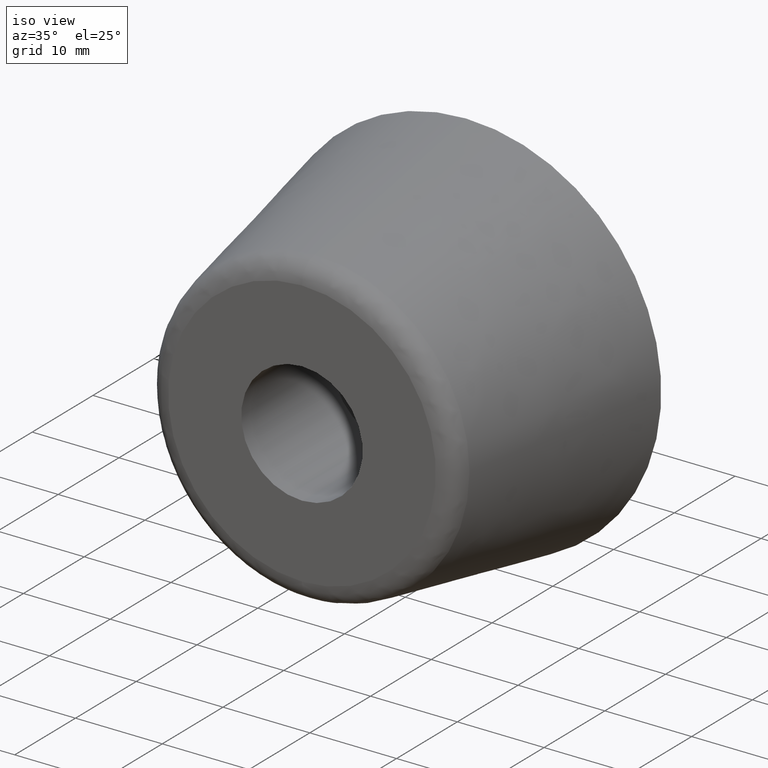
[diagram: clean part render]
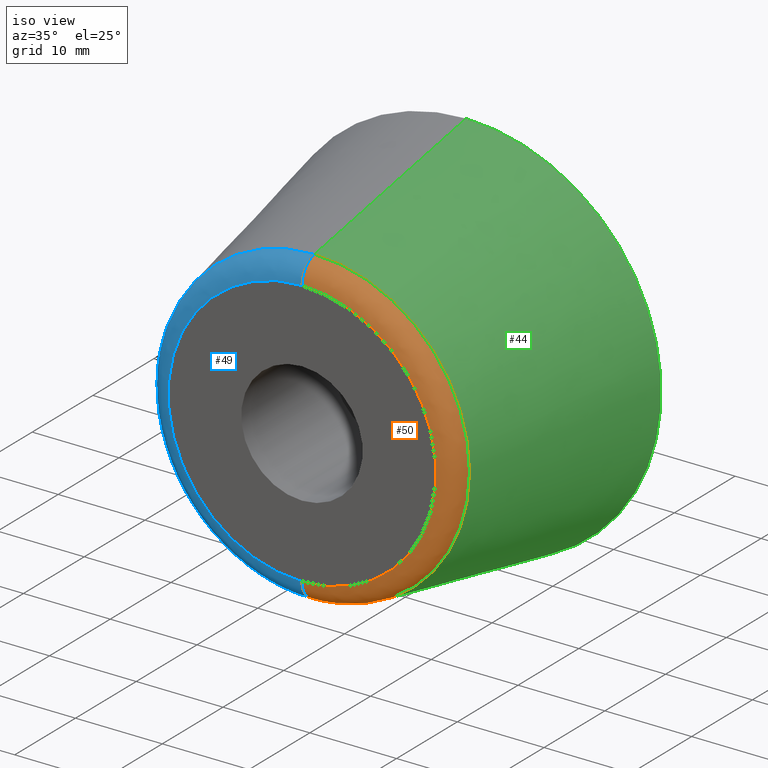
[diagram: same view with three faces highlighted in distinct colors, each labeled with its STEP entity id]
A machine part, iso view with three faces highlighted in distinct colors.
Their STEP definitions:

[orange] entity #50 — the highlighted face is a freeform B-spline surface patch.
#50=ADVANCED_FACE('',(#155),#154,.T.);
#154=( BOUNDED_SURFACE() B_SPLINE_SURFACE( 2,2,((#250,#251,#252,#253,#254),(#255,#256,#257,#258,#259),(#260,#261,#262,#263,#264),(#265,#266,#267,#268,#269),(#270,#271,#272,#273,#274)), .UNSPECIFIED.,.F.,.F.,.F.) B_SPLINE_SURFACE_WITH_KNOTS((3,2,3),(3,2,3),(0.00000000000E+00,5.00000000000E-01,1.00000000000E+00),(0.00000000000E+00,5.00000000000E-01,1.00000000000E+00), .UNSPECIFIED. ) GEOMETRIC_REPRESENTATION_ITEM() RATIONAL_B_SPLINE_SURFACE(((1.00000000000E+00,7.68794270329E-01,1.00000000000E+00,7.68794270329E-01,1.00000000000E+00),(7.07106781187E-01,5.43619641887E-01,7.07106781187E-01,5.43619641887E-01,7.07106781187E-01),(1.00000000000E+00,7.68794270329E-01,1.00000000000E+00,7.68794270329E-01,1.00000000000E+00),(7.07106781187E-01,5.43619641887E-01,7.07106781187E-01,5.43619641887E-01,7.07106781187E-01),(1.00000000000E+00,7.68794270329E-01,1.00000000000E+00,7.68794270329E-01,1.00000000000E+00))) REPRESENTATION_ITEM('') SURFACE() );
#155=FACE_OUTER_BOUND('',#275,.T.);
#250=CARTESIAN_POINT('',(-7.23108310076E-20,-2.49552231505E+01,-1.78786623795E+01));
#251=CARTESIAN_POINT('',(-7.07793187079E-20,-2.70000000000E+01,-1.75000000000E+01));
#252=CARTESIAN_POINT('',(-6.23685409489E-20,-2.70000000000E+01,-1.54204573671E+01));
#253=CARTESIAN_POINT('',(-5.39577631900E-20,-2.70000000000E+01,-1.33409147342E+01));
#254=CARTESIAN_POINT('',(-5.24262508903E-20,-2.49552231505E+01,-1.29622523546E+01));
#255=CARTESIAN_POINT('',(1.78786623795E+01,-2.49552231505E+01,-1.78786623795E+01));
#256=CARTESIAN_POINT('',(1.75000000000E+01,-2.70000000000E+01,-1.75000000000E+01));
#257=CARTESIAN_POINT('',(1.54204573671E+01,-2.70000000000E+01,-1.54204573671E+01));
#258=CARTESIAN_POINT('',(1.33409147342E+01,-2.70000000000E+01,-1.33409147342E+01));
#259=CARTESIAN_POINT('',(1.29622523546E+01,-2.49552231505E+01,-1.29622523546E+01));
#260=CARTESIAN_POINT('',(1.78786623795E+01,-2.49552231505E+01,-1.09482464364E-15));
#261=CARTESIAN_POINT('',(1.75000000000E+01,-2.70000000000E+01,-1.07163672857E-15));
#262=CARTESIAN_POINT('',(1.54204573671E+01,-2.70000000000E+01,-9.44293056340E-16));
#263=CARTESIAN_POINT('',(1.33409147342E+01,-2.70000000000E+01,-8.16949384108E-16));
#264=CARTESIAN_POINT('',(1.29622523546E+01,-2.49552231505E+01,-7.93761469042E-16));
#265=CARTESIAN_POINT('',(1.78786623795E+01,-2.49552231505E+01,1.78786623795E+01));
#266=CARTESIAN_POINT('',(1.75000000000E+01,-2.70000000000E+01,1.75000000000E+01));
#267=CARTESIAN_POINT('',(1.54204573671E+01,-2.70000000000E+01,1.54204573671E+01));
#268=CARTESIAN_POINT('',(1.33409147342E+01,-2.70000000000E+01,1.33409147342E+01));
#269=CARTESIAN_POINT('',(1.29622523546E+01,-2.49552231505E+01,1.29622523546E+01));
#270=CARTESIAN_POINT('',(2.18957697645E-15,-2.49552231505E+01,1.78786623795E+01));
#271=CARTESIAN_POINT('',(2.14320267783E-15,-2.70000000000E+01,1.75000000000E+01));
#272=CARTESIAN_POINT('',(1.88852374414E-15,-2.70000000000E+01,1.54204573671E+01));
#273=CARTESIAN_POINT('',(1.63384481045E-15,-2.70000000000E+01,1.33409147342E+01));
#274=CARTESIAN_POINT('',(1.58747051183E-15,-2.49552231505E+01,1.29622523546E+01));
#275=EDGE_LOOP('',(#316,#317,#318,#319));
#316=ORIENTED_EDGE('',*,*,#335,.T.);
#317=ORIENTED_EDGE('',*,*,#340,.T.);
#318=ORIENTED_EDGE('',*,*,#328,.F.);
#319=ORIENTED_EDGE('',*,*,#341,.F.);
#328=EDGE_CURVE('',#398,#399,#400,.T.);
#335=EDGE_CURVE('',#426,#433,#446,.T.);
#340=EDGE_CURVE('',#433,#399,#476,.T.);
#341=EDGE_CURVE('',#426,#398,#482,.T.);
#398=VERTEX_POINT('',#528);
#399=VERTEX_POINT('',#529);
#400=CIRCLE('',#533,1.54204573671E+01);
#426=VERTEX_POINT('',#548);
#433=VERTEX_POINT('',#551);
#446=CIRCLE('',#561,1.78786623795E+01);
#476=(BOUNDED_CURVE() B_SPLINE_CURVE(2,(#570,#571,#572),.UNSPECIFIED.,.F.,.F.) B_SPLINE_CURVE_WITH_KNOTS((3,3),(0.00000000000E+00,5.00000000000E-01),.UNSPECIFIED.) CURVE() GEOMETRIC_REPRESENTATION_ITEM() RATIONAL_B_SPLINE_CURVE((1.00000000000E+00,7.68794270329E-01,1.00000000000E+00)) REPRESENTATION_ITEM('') );
#482=(BOUNDED_CURVE() B_SPLINE_CURVE(3,(#573,#574,#575,#576,#577),.UNSPECIFIED.,.F.,.F.) B_SPLINE_CURVE_WITH_KNOTS((4,1,4),(0.00000000000E+00,2.50000001162E-01,5.00000002077E-01),.UNSPECIFIED.) CURVE() GEOMETRIC_REPRESENTATION_ITEM() RATIONAL_B_SPLINE_CURVE((1.00000000000E+00,1.00000000000E+00,1.00000000000E+00,1.00000000000E+00,1.00000000000E+00)) REPRESENTATION_ITEM('') );
#528=CARTESIAN_POINT('',(0.00000000000E+00,-2.70000000000E+01,-1.54204573671E+01));
#529=CARTESIAN_POINT('',(1.18423789293E-15,-2.70000000000E+01,1.54204573671E+01));
#530=CARTESIAN_POINT('',(0.00000000000E+00,-2.70000000000E+01,0.00000000000E+00));
#531=DIRECTION('',(0.00000000000E+00,-1.00000000000E+00,-0.00000000000E+00));
#532=DIRECTION('',(-1.22460635382E-16,0.00000000000E+00,-1.00000000000E+00));
#533=AXIS2_PLACEMENT_3D('',#530,#531,#532);
#548=CARTESIAN_POINT('',(0.00000000000E+00,-2.49552231505E+01,-1.78786623795E+01));
#551=CARTESIAN_POINT('',(1.18423789293E-15,-2.49552231505E+01,1.78786623795E+01));
#558=CARTESIAN_POINT('',(0.00000000000E+00,-2.49552231505E+01,0.00000000000E+00));
#559=DIRECTION('',(0.00000000000E+00,-1.00000000000E+00,-0.00000000000E+00));
#560=DIRECTION('',(-1.22460635382E-16,0.00000000000E+00,-1.00000000000E+00));
#561=AXIS2_PLACEMENT_3D('',#558,#559,#560);
#570=CARTESIAN_POINT('',(-2.18943235478E-15,-2.49552231505E+01,1.78786623795E+01));
#571=CARTESIAN_POINT('',(-2.14306111919E-15,-2.70000000000E+01,1.75000000000E+01));
#572=CARTESIAN_POINT('',(-1.88839900706E-15,-2.70000000000E+01,1.54204573671E+01));
#573=CARTESIAN_POINT('',(3.55271367880E-15,-2.49552231505E+01,-1.78786623795E+01));
#574=CARTESIAN_POINT('',(3.20744366482E-15,-2.55202417002E+01,-1.77774424852E+01));
#575=CARTESIAN_POINT('',(2.81820962910E-15,-2.65821724544E+01,-1.71524439124E+01));
#576=CARTESIAN_POINT('',(3.20744368193E-15,-2.70033561121E+01,-1.59944609813E+01));
#577=CARTESIAN_POINT('',(3.55271366595E-15,-2.70000000000E+01,-1.54204573538E+01));

[blue] entity #49 — the highlighted face is a freeform B-spline surface patch.
#49=ADVANCED_FACE('',(#145),#144,.T.);
#144=( BOUNDED_SURFACE() B_SPLINE_SURFACE( 2,2,((#224,#225,#226,#227,#228),(#229,#230,#231,#232,#233),(#234,#235,#236,#237,#238),(#239,#240,#241,#242,#243),(#244,#245,#246,#247,#248)), .UNSPECIFIED.,.F.,.F.,.F.) B_SPLINE_SURFACE_WITH_KNOTS((3,2,3),(3,2,3),(0.00000000000E+00,5.00000000000E-01,1.00000000000E+00),(0.00000000000E+00,5.00000000000E-01,1.00000000000E+00), .UNSPECIFIED. ) GEOMETRIC_REPRESENTATION_ITEM() RATIONAL_B_SPLINE_SURFACE(((1.00000000000E+00,7.68794270329E-01,1.00000000000E+00,7.68794270329E-01,1.00000000000E+00),(7.07106781187E-01,5.43619641887E-01,7.07106781187E-01,5.43619641887E-01,7.07106781187E-01),(1.00000000000E+00,7.68794270329E-01,1.00000000000E+00,7.68794270329E-01,1.00000000000E+00),(7.07106781187E-01,5.43619641887E-01,7.07106781187E-01,5.43619641887E-01,7.07106781187E-01),(1.00000000000E+00,7.68794270329E-01,1.00000000000E+00,7.68794270329E-01,1.00000000000E+00))) REPRESENTATION_ITEM('') SURFACE() );
#145=FACE_OUTER_BOUND('',#249,.T.);
#224=CARTESIAN_POINT('',(-2.18943235478E-15,-2.49552231505E+01,1.78786623795E+01));
#225=CARTESIAN_POINT('',(-2.14306111919E-15,-2.70000000000E+01,1.75000000000E+01));
#226=CARTESIAN_POINT('',(-1.88839900706E-15,-2.70000000000E+01,1.54204573671E+01));
#227=CARTESIAN_POINT('',(-1.63373689493E-15,-2.70000000000E+01,1.33409147342E+01));
#228=CARTESIAN_POINT('',(-1.58736565933E-15,-2.49552231505E+01,1.29622523546E+01));
#229=CARTESIAN_POINT('',(-1.78786623795E+01,-2.49552231505E+01,1.78786623795E+01));
#230=CARTESIAN_POINT('',(-1.75000000000E+01,-2.70000000000E+01,1.75000000000E+01));
#231=CARTESIAN_POINT('',(-1.54204573671E+01,-2.70000000000E+01,1.54204573671E+01));
#232=CARTESIAN_POINT('',(-1.33409147342E+01,-2.70000000000E+01,1.33409147342E+01));
#233=CARTESIAN_POINT('',(-1.29622523546E+01,-2.49552231505E+01,1.29622523546E+01));
#234=CARTESIAN_POINT('',(-1.78786623795E+01,-2.49552231505E+01,-1.09468002198E-15));
#235=CARTESIAN_POINT('',(-1.75000000000E+01,-2.70000000000E+01,-1.07149516994E-15));
#236=CARTESIAN_POINT('',(-1.54204573671E+01,-2.70000000000E+01,-9.44168319258E-16));
#237=CARTESIAN_POINT('',(-1.33409147342E+01,-2.70000000000E+01,-8.16841468582E-16));
#238=CARTESIAN_POINT('',(-1.29622523546E+01,-2.49552231505E+01,-7.93656616541E-16));
#239=CARTESIAN_POINT('',(-1.78786623795E+01,-2.49552231505E+01,-1.78786623795E+01));
#240=CARTESIAN_POINT('',(-1.75000000000E+01,-2.70000000000E+01,-1.75000000000E+01));
#241=CARTESIAN_POINT('',(-1.54204573671E+01,-2.70000000000E+01,-1.54204573671E+01));
#242=CARTESIAN_POINT('',(-1.33409147342E+01,-2.70000000000E+01,-1.33409147342E+01));
#243=CARTESIAN_POINT('',(-1.29622523546E+01,-2.49552231505E+01,-1.29622523546E+01));
#244=CARTESIAN_POINT('',(-7.23108310074E-20,-2.49552231505E+01,-1.78786623795E+01));
#245=CARTESIAN_POINT('',(-7.07793187075E-20,-2.70000000000E+01,-1.75000000000E+01));
#246=CARTESIAN_POINT('',(-6.23685409487E-20,-2.70000000000E+01,-1.54204573671E+01));
#247=CARTESIAN_POINT('',(-5.39577631895E-20,-2.70000000000E+01,-1.33409147342E+01));
#248=CARTESIAN_POINT('',(-5.24262508899E-20,-2.49552231505E+01,-1.29622523546E+01));
#249=EDGE_LOOP('',(#312,#313,#314,#315));
#312=ORIENTED_EDGE('',*,*,#329,.F.);
#313=ORIENTED_EDGE('',*,*,#340,.F.);
#314=ORIENTED_EDGE('',*,*,#333,.T.);
#315=ORIENTED_EDGE('',*,*,#341,.T.);
#329=EDGE_CURVE('',#399,#398,#406,.T.);
#333=EDGE_CURVE('',#433,#426,#434,.T.);
#340=EDGE_CURVE('',#433,#399,#476,.T.);
#341=EDGE_CURVE('',#426,#398,#482,.T.);
#398=VERTEX_POINT('',#528);
#399=VERTEX_POINT('',#529);
#406=CIRCLE('',#537,1.54204573671E+01);
#426=VERTEX_POINT('',#548);
#433=VERTEX_POINT('',#551);
#434=CIRCLE('',#555,1.78786623795E+01);
#476=(BOUNDED_CURVE() B_SPLINE_CURVE(2,(#570,#571,#572),.UNSPECIFIED.,.F.,.F.) B_SPLINE_CURVE_WITH_KNOTS((3,3),(0.00000000000E+00,5.00000000000E-01),.UNSPECIFIED.) CURVE() GEOMETRIC_REPRESENTATION_ITEM() RATIONAL_B_SPLINE_CURVE((1.00000000000E+00,7.68794270329E-01,1.00000000000E+00)) REPRESENTATION_ITEM('') );
#482=(BOUNDED_CURVE() B_SPLINE_CURVE(3,(#573,#574,#575,#576,#577),.UNSPECIFIED.,.F.,.F.) B_SPLINE_CURVE_WITH_KNOTS((4,1,4),(0.00000000000E+00,2.50000001162E-01,5.00000002077E-01),.UNSPECIFIED.) CURVE() GEOMETRIC_REPRESENTATION_ITEM() RATIONAL_B_SPLINE_CURVE((1.00000000000E+00,1.00000000000E+00,1.00000000000E+00,1.00000000000E+00,1.00000000000E+00)) REPRESENTATION_ITEM('') );
#528=CARTESIAN_POINT('',(0.00000000000E+00,-2.70000000000E+01,-1.54204573671E+01));
#529=CARTESIAN_POINT('',(1.18423789293E-15,-2.70000000000E+01,1.54204573671E+01));
#534=CARTESIAN_POINT('',(0.00000000000E+00,-2.70000000000E+01,0.00000000000E+00));
#535=DIRECTION('',(0.00000000000E+00,-1.00000000000E+00,-0.00000000000E+00));
#536=DIRECTION('',(-1.22460635382E-16,0.00000000000E+00,-1.00000000000E+00));
#537=AXIS2_PLACEMENT_3D('',#534,#535,#536);
#548=CARTESIAN_POINT('',(0.00000000000E+00,-2.49552231505E+01,-1.78786623795E+01));
#551=CARTESIAN_POINT('',(1.18423789293E-15,-2.49552231505E+01,1.78786623795E+01));
#552=CARTESIAN_POINT('',(0.00000000000E+00,-2.49552231505E+01,0.00000000000E+00));
#553=DIRECTION('',(0.00000000000E+00,-1.00000000000E+00,-0.00000000000E+00));
#554=DIRECTION('',(-1.22460635382E-16,0.00000000000E+00,-1.00000000000E+00));
#555=AXIS2_PLACEMENT_3D('',#552,#553,#554);
#570=CARTESIAN_POINT('',(-2.18943235478E-15,-2.49552231505E+01,1.78786623795E+01));
#571=CARTESIAN_POINT('',(-2.14306111919E-15,-2.70000000000E+01,1.75000000000E+01));
#572=CARTESIAN_POINT('',(-1.88839900706E-15,-2.70000000000E+01,1.54204573671E+01));
#573=CARTESIAN_POINT('',(3.55271367880E-15,-2.49552231505E+01,-1.78786623795E+01));
#574=CARTESIAN_POINT('',(3.20744366482E-15,-2.55202417002E+01,-1.77774424852E+01));
#575=CARTESIAN_POINT('',(2.81820962910E-15,-2.65821724544E+01,-1.71524439124E+01));
#576=CARTESIAN_POINT('',(3.20744368193E-15,-2.70033561121E+01,-1.59944609813E+01));
#577=CARTESIAN_POINT('',(3.55271366595E-15,-2.70000000000E+01,-1.54204573538E+01));

[green] entity #44 — the highlighted face is a freeform B-spline surface patch.
#44=ADVANCED_FACE('',(#95),#94,.T.);
#94=( BOUNDED_SURFACE() B_SPLINE_SURFACE( 2,1,((#193,#194),(#195,#196),(#197,#198),(#199,#200),(#201,#202)), .UNSPECIFIED.,.F.,.F.,.F.) B_SPLINE_SURFACE_WITH_KNOTS((3,2,3),(2,2),(0.00000000000E+00,5.00000000000E-01,1.00000000000E+00),(0.00000000000E+00,1.00000000000E+00), .UNSPECIFIED. ) GEOMETRIC_REPRESENTATION_ITEM() RATIONAL_B_SPLINE_SURFACE(((1.00000000000E+00,1.00000000000E+00),(7.07106781187E-01,7.07106781187E-01),(1.00000000000E+00,1.00000000000E+00),(7.07106781187E-01,7.07106781187E-01),(1.00000000000E+00,1.00000000000E+00))) REPRESENTATION_ITEM('') SURFACE() );
#95=FACE_OUTER_BOUND('',#203,.T.);
#193=CARTESIAN_POINT('',(2.18950466561E-15,-2.49552231505E+01,1.78786623795E+01));
#194=CARTESIAN_POINT('',(2.75545529808E-15,0.00000000000E+00,2.25000000000E+01));
#195=CARTESIAN_POINT('',(1.78786623795E+01,-2.49552231505E+01,1.78786623795E+01));
#196=CARTESIAN_POINT('',(2.25000000000E+01,0.00000000000E+00,2.25000000000E+01));
#197=CARTESIAN_POINT('',(1.78786623795E+01,-2.49552231505E+01,-1.09475233281E-15));
#198=CARTESIAN_POINT('',(2.25000000000E+01,0.00000000000E+00,-1.37772764904E-15));
#199=CARTESIAN_POINT('',(1.78786623795E+01,-2.49552231505E+01,-1.78786623795E+01));
#200=CARTESIAN_POINT('',(2.25000000000E+01,0.00000000000E+00,-2.25000000000E+01));
#201=CARTESIAN_POINT('',(0.00000000000E+00,-2.49552231505E+01,-1.78786623795E+01));
#202=CARTESIAN_POINT('',(0.00000000000E+00,0.00000000000E+00,-2.25000000000E+01));
#203=EDGE_LOOP('',(#292,#293,#294,#295));
#292=ORIENTED_EDGE('',*,*,#335,.F.);
#293=ORIENTED_EDGE('',*,*,#332,.T.);
#294=ORIENTED_EDGE('',*,*,#321,.T.);
#295=ORIENTED_EDGE('',*,*,#334,.F.);
#321=EDGE_CURVE('',#343,#342,#350,.T.);
#332=EDGE_CURVE('',#426,#343,#427,.T.);
#334=EDGE_CURVE('',#433,#342,#440,.T.);
#335=EDGE_CURVE('',#426,#433,#446,.T.);
#342=VERTEX_POINT('',#488);
#343=VERTEX_POINT('',#489);
#350=CIRCLE('',#497,2.25000000000E+01);
#426=VERTEX_POINT('',#548);
#427=(BOUNDED_CURVE() B_SPLINE_CURVE(1,(#549,#550),.UNSPECIFIED.,.F.,.F.) B_SPLINE_CURVE_WITH_KNOTS((2,2),(0.00000000000E+00,1.00000000000E+00),.UNSPECIFIED.) CURVE() GEOMETRIC_REPRESENTATION_ITEM() RATIONAL_B_SPLINE_CURVE((1.00000000000E+00,1.00000000000E+00)) REPRESENTATION_ITEM('') );
#433=VERTEX_POINT('',#551);
#440=(BOUNDED_CURVE() B_SPLINE_CURVE(1,(#556,#557),.UNSPECIFIED.,.F.,.F.) B_SPLINE_CURVE_WITH_KNOTS((2,2),(0.00000000000E+00,1.00000000000E+00),.UNSPECIFIED.) CURVE() GEOMETRIC_REPRESENTATION_ITEM() RATIONAL_B_SPLINE_CURVE((7.50000000000E-01,7.50000000000E-01)) REPRESENTATION_ITEM('') );
#446=CIRCLE('',#561,1.78786623795E+01);
#488=CARTESIAN_POINT('',(1.18423789293E-15,0.00000000000E+00,2.25000000000E+01));
#489=CARTESIAN_POINT('',(0.00000000000E+00,0.00000000000E+00,-2.25000000000E+01));
#494=CARTESIAN_POINT('',(0.00000000000E+00,0.00000000000E+00,0.00000000000E+00));
#495=DIRECTION('',(0.00000000000E+00,-1.00000000000E+00,-0.00000000000E+00));
#496=DIRECTION('',(-1.22460635382E-16,0.00000000000E+00,-1.00000000000E+00));
#497=AXIS2_PLACEMENT_3D('',#494,#495,#496);
#548=CARTESIAN_POINT('',(0.00000000000E+00,-2.49552231505E+01,-1.78786623795E+01));
#549=CARTESIAN_POINT('',(-4.37886470957E-15,-2.49552231505E+01,-1.78786623795E+01));
#550=CARTESIAN_POINT('',(-5.51072859220E-15,0.00000000000E+00,-2.25000000000E+01));
#551=CARTESIAN_POINT('',(1.18423789293E-15,-2.49552231505E+01,1.78786623795E+01));
#556=CARTESIAN_POINT('',(4.73695157173E-15,-2.49552231505E+01,1.78786623795E+01));
#557=CARTESIAN_POINT('',(7.10542735760E-15,0.00000000000E+00,2.25000000000E+01));
#558=CARTESIAN_POINT('',(0.00000000000E+00,-2.49552231505E+01,0.00000000000E+00));
#559=DIRECTION('',(0.00000000000E+00,-1.00000000000E+00,-0.00000000000E+00));
#560=DIRECTION('',(-1.22460635382E-16,0.00000000000E+00,-1.00000000000E+00));
#561=AXIS2_PLACEMENT_3D('',#558,#559,#560);